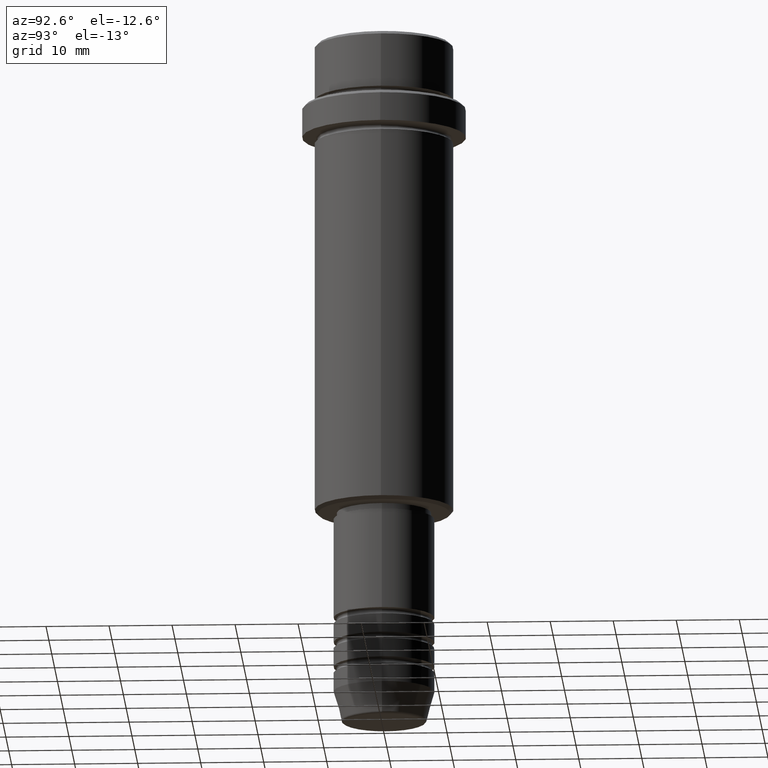
[diagram: clean part render]
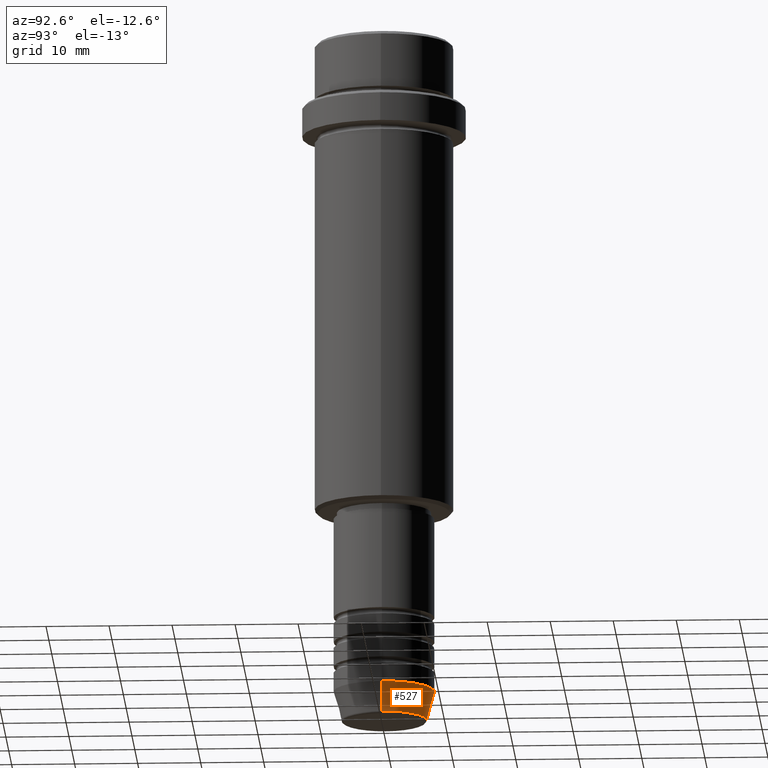
[diagram: same view with one face highlighted and labeled with its STEP entity id]
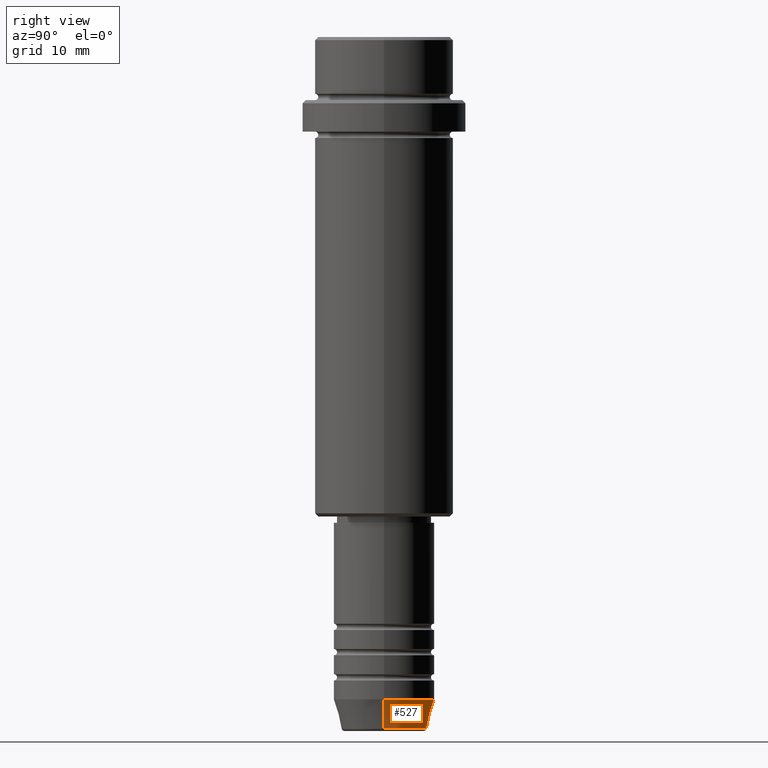
[diagram: same view with one face highlighted and labeled with its STEP entity id]
A machine part, auxiliary view. The second image highlights one B-rep face of the part: STEP entity #527.
A second angle (right view) of the same face is appended — the face is thin or edge-on in the first view.
In plain terms, the highlighted conical surface has half-angle 15 deg.
Its self-contained STEP definition (entity closure, byte-faithful):
#31 = CARTESIAN_POINT ( 'NONE',  ( 0.000000000000000000, 0.000000000000000000, -109.6294095225512706 ) ) ;
#56 = CARTESIAN_POINT ( 'NONE',  ( 6.759553456999433330, 0.000000000000000000, -109.6294095225512706 ) ) ;
#130 = EDGE_CURVE ( 'NONE', #534, #582, #1134, .T. ) ;
#176 = AXIS2_PLACEMENT_3D ( 'NONE', #469, #911, #682 ) ;
#185 = EDGE_CURVE ( 'NONE', #534, #1216, #1265, .T. ) ;
#236 = CIRCLE ( 'NONE', #176, 8.000000000000000000 ) ;
#278 = CARTESIAN_POINT ( 'NONE',  ( -6.759553456999433330, 9.037619948979304241E-16, -109.6294095225512706 ) ) ;
#372 = ORIENTED_EDGE ( 'NONE', *, *, #185, .T. ) ;
#389 = FACE_OUTER_BOUND ( 'NONE', #541, .T. ) ;
#411 = CONICAL_SURFACE ( 'NONE', #457, 8.000000000000000000, 0.2617993877991500740 ) ;
#427 = ORIENTED_EDGE ( 'NONE', *, *, #130, .F. ) ;
#457 = AXIS2_PLACEMENT_3D ( 'NONE', #925, #826, #1034 ) ;
#469 = CARTESIAN_POINT ( 'NONE',  ( 0.000000000000000000, 0.000000000000000000, -105.0000000000000142 ) ) ;
#495 = CARTESIAN_POINT ( 'NONE',  ( 8.000000000000000000, 0.000000000000000000, -105.0000000000000142 ) ) ;
#527 = ADVANCED_FACE ( 'NONE', ( #389 ), #411, .T. ) ;
#534 = VERTEX_POINT ( 'NONE', #56 ) ;
#541 = EDGE_LOOP ( 'NONE', ( #372, #862, #1211, #427 ) ) ;
#582 = VERTEX_POINT ( 'NONE', #1304 ) ;
#682 = DIRECTION ( 'NONE',  ( 1.000000000000000000, 0.000000000000000000, 0.000000000000000000 ) ) ;
#699 = DIRECTION ( 'NONE',  ( 0.2588190451025213501, 0.000000000000000000, 0.9659258262890680902 ) ) ;
#702 = AXIS2_PLACEMENT_3D ( 'NONE', #31, #1224, #1112 ) ;
#727 = VECTOR ( 'NONE', #731, 1000.000000000000000 ) ;
#731 = DIRECTION ( 'NONE',  ( -0.2588190451025213501, 3.169619151431772337E-17, 0.9659258262890680902 ) ) ;
#826 = DIRECTION ( 'NONE',  ( -0.000000000000000000, -0.000000000000000000, 1.000000000000000000 ) ) ;
#851 = LINE ( 'NONE', #1293, #727 ) ;
#862 = ORIENTED_EDGE ( 'NONE', *, *, #943, .T. ) ;
#894 = VECTOR ( 'NONE', #699, 1000.000000000000000 ) ;
#903 = CARTESIAN_POINT ( 'NONE',  ( -8.000000000000000000, 9.797174393178825657E-16, -105.0000000000000142 ) ) ;
#911 = DIRECTION ( 'NONE',  ( -0.000000000000000000, -0.000000000000000000, 1.000000000000000000 ) ) ;
#925 = CARTESIAN_POINT ( 'NONE',  ( 0.000000000000000000, 0.000000000000000000, -105.0000000000000142 ) ) ;
#943 = EDGE_CURVE ( 'NONE', #1216, #1009, #851, .T. ) ;
#1009 = VERTEX_POINT ( 'NONE', #903 ) ;
#1034 = DIRECTION ( 'NONE',  ( 1.000000000000000000, 0.000000000000000000, 0.000000000000000000 ) ) ;
#1112 = DIRECTION ( 'NONE',  ( 1.000000000000000000, 0.000000000000000000, 0.000000000000000000 ) ) ;
#1134 = LINE ( 'NONE', #495, #894 ) ;
#1211 = ORIENTED_EDGE ( 'NONE', *, *, #1272, .F. ) ;
#1216 = VERTEX_POINT ( 'NONE', #278 ) ;
#1224 = DIRECTION ( 'NONE',  ( -0.000000000000000000, -0.000000000000000000, 1.000000000000000000 ) ) ;
#1265 = CIRCLE ( 'NONE', #702, 6.759553456999433330 ) ;
#1272 = EDGE_CURVE ( 'NONE', #582, #1009, #236, .T. ) ;
#1293 = CARTESIAN_POINT ( 'NONE',  ( -8.000000000000000000, 9.797174393178825657E-16, -105.0000000000000142 ) ) ;
#1304 = CARTESIAN_POINT ( 'NONE',  ( 8.000000000000000000, 0.000000000000000000, -105.0000000000000142 ) ) ;